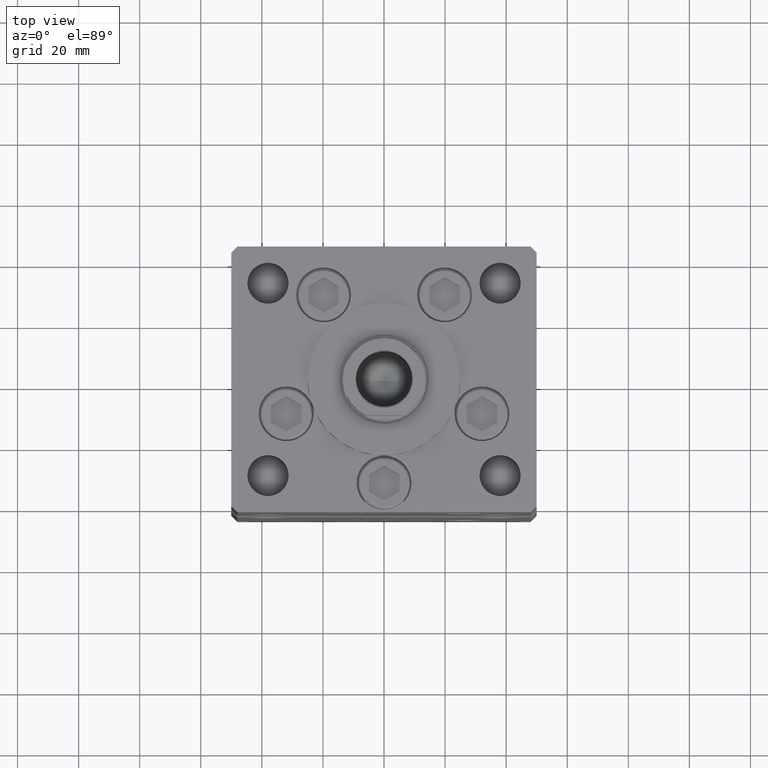
[diagram: clean part render]
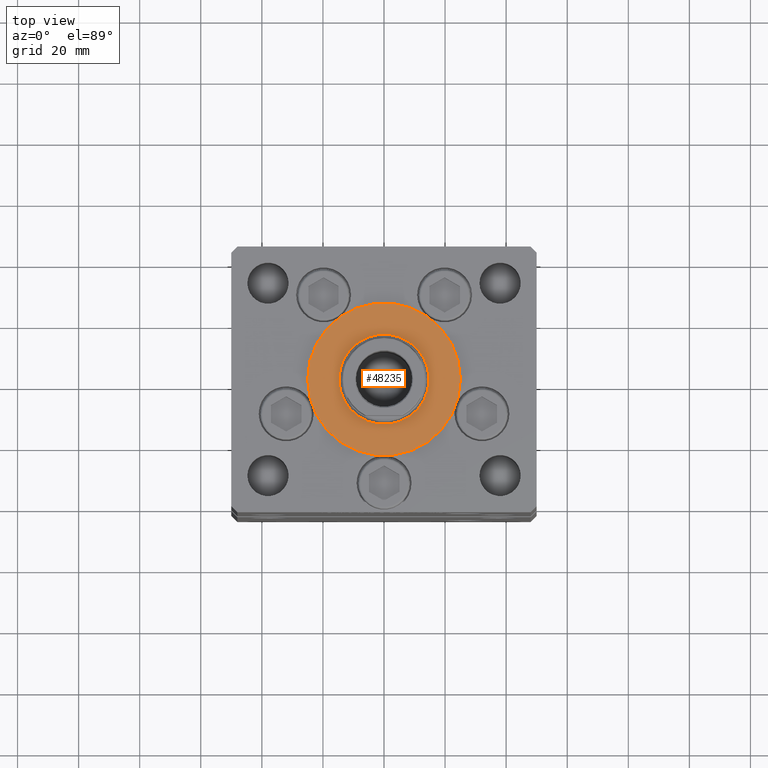
[diagram: same view with one face highlighted and labeled with its STEP entity id]
A machine part, top view. The second image highlights one B-rep face of the part: STEP entity #48235.
In plain terms, the highlighted planar face has unit normal (0, 0, 1).
Its self-contained STEP definition (entity closure, byte-faithful):
#2642 = ORIENTED_EDGE ( 'NONE', *, *, #45204, .T. ) ;
#2718 = CARTESIAN_POINT ( 'NONE',  ( 0.000000000000000000, -6.938893903907228378E-15, 2.000000000000000000 ) ) ;
#2814 = CIRCLE ( 'NONE', #24244, 25.00000000000000000 ) ;
#4758 = AXIS2_PLACEMENT_3D ( 'NONE', #47346, #26618, #51637 ) ;
#5748 = FACE_OUTER_BOUND ( 'NONE', #38019, .T. ) ;
#9528 = EDGE_CURVE ( 'NONE', #15849, #52053, #23808, .T. ) ;
#11710 = DIRECTION ( 'NONE',  ( 1.000000000000000000, 0.000000000000000000, 0.000000000000000000 ) ) ;
#12970 = CARTESIAN_POINT ( 'NONE',  ( -25.00000000000000000, -6.938893903907228378E-15, 2.000000000000000000 ) ) ;
#13542 = AXIS2_PLACEMENT_3D ( 'NONE', #48577, #28941, #11710 ) ;
#14016 = DIRECTION ( 'NONE',  ( 0.000000000000000000, 0.000000000000000000, 1.000000000000000000 ) ) ;
#14698 = CARTESIAN_POINT ( 'NONE',  ( 14.75000000000000178, -6.938893903907228378E-15, 2.000000000000000000 ) ) ;
#15069 = CIRCLE ( 'NONE', #4758, 25.00000000000000000 ) ;
#15628 = EDGE_CURVE ( 'NONE', #42688, #30939, #15069, .T. ) ;
#15849 = VERTEX_POINT ( 'NONE', #14698 ) ;
#16001 = ORIENTED_EDGE ( 'NONE', *, *, #18334, .F. ) ;
#16375 = DIRECTION ( 'NONE',  ( 0.000000000000000000, 0.000000000000000000, 1.000000000000000000 ) ) ;
#16464 = EDGE_LOOP ( 'NONE', ( #24977, #16001 ) ) ;
#18098 = DIRECTION ( 'NONE',  ( 1.000000000000000000, 0.000000000000000000, -0.000000000000000000 ) ) ;
#18334 = EDGE_CURVE ( 'NONE', #52053, #15849, #39959, .T. ) ;
#20101 = CARTESIAN_POINT ( 'NONE',  ( 25.00000000000000000, -3.877276906038844941E-15, 2.000000000000000000 ) ) ;
#22134 = CARTESIAN_POINT ( 'NONE',  ( 0.000000000000000000, -6.938893903907228378E-15, 2.000000000000000000 ) ) ;
#23808 = CIRCLE ( 'NONE', #13542, 14.75000000000000178 ) ;
#24244 = AXIS2_PLACEMENT_3D ( 'NONE', #2718, #14016, #47900 ) ;
#24977 = ORIENTED_EDGE ( 'NONE', *, *, #9528, .F. ) ;
#25256 = CARTESIAN_POINT ( 'NONE',  ( 0.000000000000000000, -6.938893903907228378E-15, 2.000000000000000000 ) ) ;
#25365 = DIRECTION ( 'NONE',  ( 0.000000000000000000, 0.000000000000000000, 1.000000000000000000 ) ) ;
#26078 = ORIENTED_EDGE ( 'NONE', *, *, #15628, .T. ) ;
#26618 = DIRECTION ( 'NONE',  ( 0.000000000000000000, 0.000000000000000000, 1.000000000000000000 ) ) ;
#28941 = DIRECTION ( 'NONE',  ( 0.000000000000000000, 0.000000000000000000, 1.000000000000000000 ) ) ;
#29957 = FACE_BOUND ( 'NONE', #16464, .T. ) ;
#30487 = PLANE ( 'NONE',  #33857 ) ;
#30939 = VERTEX_POINT ( 'NONE', #12970 ) ;
#33857 = AXIS2_PLACEMENT_3D ( 'NONE', #22134, #25365, #18098 ) ;
#38019 = EDGE_LOOP ( 'NONE', ( #2642, #26078 ) ) ;
#39959 = CIRCLE ( 'NONE', #49404, 14.75000000000000178 ) ;
#41690 = DIRECTION ( 'NONE',  ( 1.000000000000000000, 0.000000000000000000, 0.000000000000000000 ) ) ;
#42688 = VERTEX_POINT ( 'NONE', #20101 ) ;
#45204 = EDGE_CURVE ( 'NONE', #30939, #42688, #2814, .T. ) ;
#45550 = CARTESIAN_POINT ( 'NONE',  ( -14.75000000000000178, -5.132539875164881787E-15, 2.000000000000000000 ) ) ;
#47346 = CARTESIAN_POINT ( 'NONE',  ( 0.000000000000000000, -6.938893903907228378E-15, 2.000000000000000000 ) ) ;
#47900 = DIRECTION ( 'NONE',  ( 1.000000000000000000, 0.000000000000000000, 0.000000000000000000 ) ) ;
#48235 = ADVANCED_FACE ( 'NONE', ( #29957, #5748 ), #30487, .T. ) ;
#48577 = CARTESIAN_POINT ( 'NONE',  ( 0.000000000000000000, -6.938893903907228378E-15, 2.000000000000000000 ) ) ;
#49404 = AXIS2_PLACEMENT_3D ( 'NONE', #25256, #16375, #41690 ) ;
#51637 = DIRECTION ( 'NONE',  ( 1.000000000000000000, 0.000000000000000000, 0.000000000000000000 ) ) ;
#52053 = VERTEX_POINT ( 'NONE', #45550 ) ;